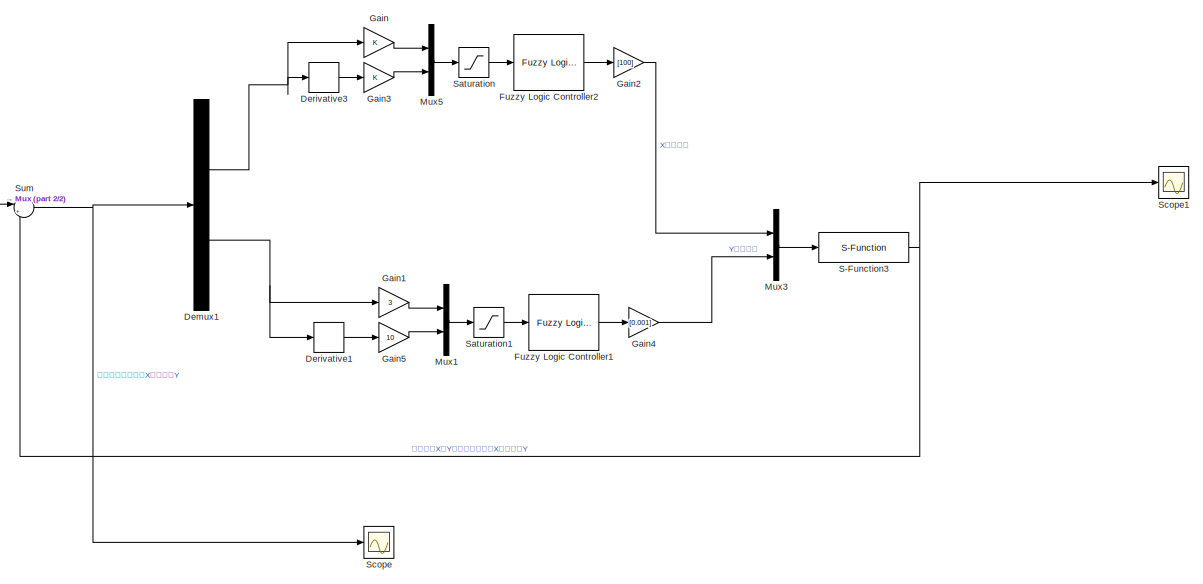
[diagram: root canvas - part 1/2, center side, full height]
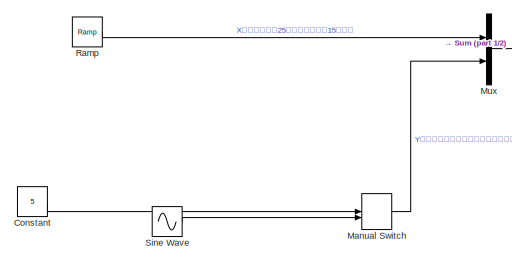
[diagram: root canvas - part 2/2, middle left region]
MODEL slx_8691b8ca3e1f
KIND model
CONFIG AbsTol = auto
CONFIG EnableMultiTasking = off
CONFIG FixedStep = auto
CONFIG MaxStep = auto
CONFIG MinStep = auto
CONFIG RelTol = 1e-3
CONFIG SampleTimeConstraint = Unconstrained
CONFIG SolverName = VariableStepAuto
CONFIG StartTime = 0.0
CONFIG StopTime = 10
BLOCK [Constant] Constant
  Value = 5
BLOCK [Demux] Demux1
  Outputs = 2
BLOCK [Derivative] Derivative1
BLOCK [Derivative] Derivative3
BLOCK [Reference] Fuzzy Logic Controller1  REF=fuzblock/Fuzzy Logic   (lib defined in mdl_858b3b3e7478)
Controller
  SourceBlock = fuzblock/Fuzzy Logic \nController
  SourceType = Fuzzy Inference System
BLOCK [Reference] Fuzzy Logic Controller2  REF=fuzblock/Fuzzy Logic   (lib defined in mdl_858b3b3e7478)
Controller
  SourceBlock = fuzblock/Fuzzy Logic \nController
  SourceType = Fuzzy Inference System
BLOCK [Gain] Gain
BLOCK [Gain] Gain1
  Gain = 3
BLOCK [Gain] Gain2
  Gain = [100]
BLOCK [Gain] Gain3
BLOCK [Gain] Gain4
  Gain = [0.001]
BLOCK [Gain] Gain5
  Gain = 10
BLOCK [ManualSwitch] Manual Switch
BLOCK [Mux] Mux
  DisplayOption = bar
  Inputs = 2
BLOCK [Mux] Mux1
  DisplayOption = bar
  Inputs = 2
BLOCK [Mux] Mux3
  DisplayOption = bar
  Inputs = 2
BLOCK [Mux] Mux5
  DisplayOption = bar
  Inputs = 2
BLOCK [Reference] Ramp  REF=simulink/Sources/Ramp
  SourceBlock = simulink/Sources/Ramp
  SourceType = Ramp
BLOCK [S-Function] S-Function3
  EnableBusSupport = off
  FunctionName = model
  SFcnIsStateOwnerBlock = off
  SFunctionDeploymentMode = off
BLOCK [Saturate] Saturation
  LowerLimit = -10
  UpperLimit = 10
BLOCK [Saturate] Saturation1
  LowerLimit = -10
  UpperLimit = 10
BLOCK [Scope] Scope
  Floating = off
  NumInputPorts = 1
  ScopeSpecificationString = Simulink.scopes.TimeScopeBlockCfg('CurrentConfiguration', extmgr.ConfigurationSet(extmgr.Configuration('Core','General UI',true),extmgr.Configuration('Core','Source UI',true),extmgr.Configuration('Sources','WiredSimulink',true),extmgr.Configuration('Visuals','Time Domain',true,'SerializedDisplays',{struct('MinYLimReal','-20','MaxYLimReal','20','YLabelReal','','MinYLimMag','0.00000','MaxYLimMag','2...<+1546ch>
BLOCK [Scope] Scope1
  Floating = off
  NumInputPorts = 1
  ScopeSpecificationString = Simulink.scopes.TimeScopeBlockCfg('CurrentConfiguration', extmgr.ConfigurationSet(extmgr.Configuration('Core','General UI',true),extmgr.Configuration('Core','Source UI',true),extmgr.Configuration('Sources','WiredSimulink',true,'DataLoggingVariableName','ScopeData1'),extmgr.Configuration('Visuals','Time Domain',true,'SerializedDisplays',{struct('MinYLimReal','-31.24929','MaxYLimReal','281.24361','Y...<+1569ch>
BLOCK [Sin] Sine Wave
  Amplitude = 4
  Frequency = 0.5
  SampleTime = 0
BLOCK [Sum] Sum
  Inputs = |+-
LINE Constant:1 -> Manual Switch:1
NET Demux1:1 -> Derivative3:1, Gain:1
NET Demux1:2 -> Derivative1:1, Gain1:1
LINE Derivative1:1 -> Gain5:1
LINE Derivative3:1 -> Gain3:1
LINE Fuzzy Logic Controller1:1 -> Gain4:1
LINE Fuzzy Logic Controller2:1 -> Gain2:1
LINE Gain1:1 -> Mux1:1
LINE Gain2:1 -> Mux3:1
LINE Gain3:1 -> Mux5:2
LINE Gain4:1 -> Mux3:2
LINE Gain5:1 -> Mux1:2
LINE Gain:1 -> Mux5:1
LINE Manual Switch:1 -> Mux:2
LINE Mux1:1 -> Saturation1:1
LINE Mux3:1 -> S-Function3:1
LINE Mux5:1 -> Saturation:1
LINE Mux:1 -> Sum:1
LINE Ramp:1 -> Mux:1
NET S-Function3:1 -> Scope1:1, Sum:2
LINE Saturation1:1 -> Fuzzy Logic Controller1:1
LINE Saturation:1 -> Fuzzy Logic Controller2:1
LINE Sine Wave:1 -> Manual Switch:2
NET Sum:1 -> Demux1:1, Scope:1
note: NET lines group one-source signal fan-out (src -> all destinations, sorted); 1:1 wires keep LINE
